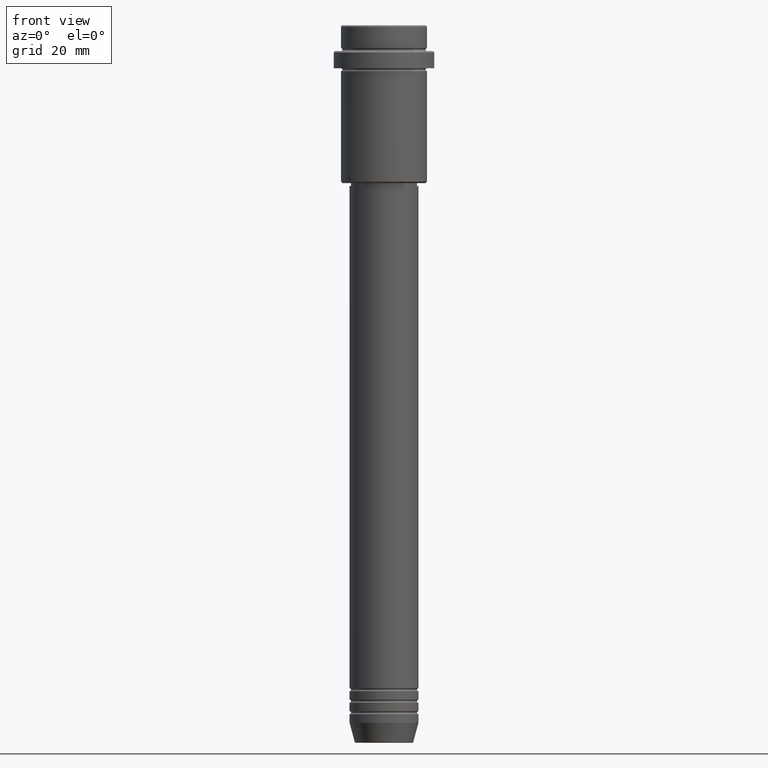
[diagram: clean part render]
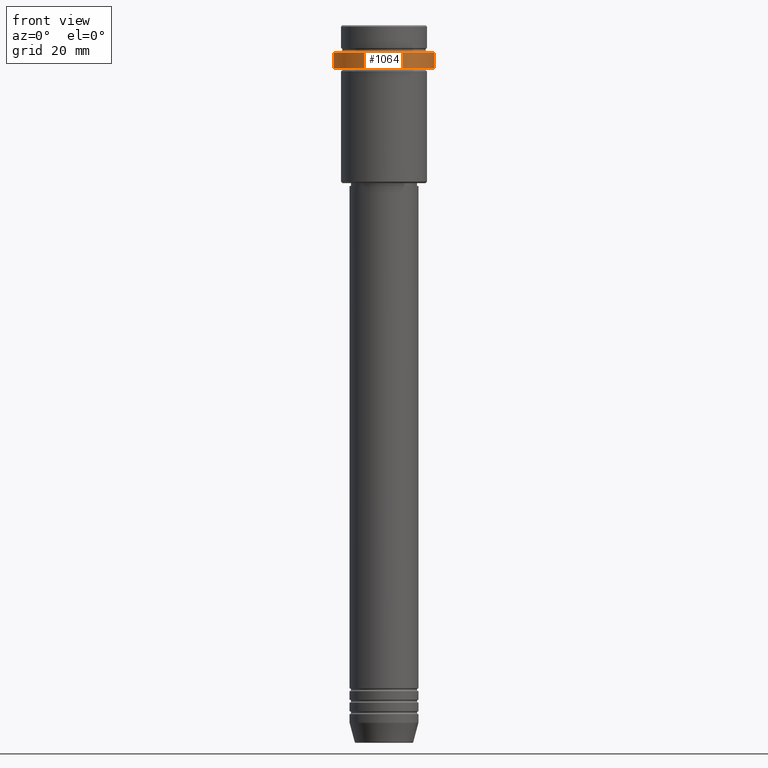
[diagram: same view with one face highlighted and labeled with its STEP entity id]
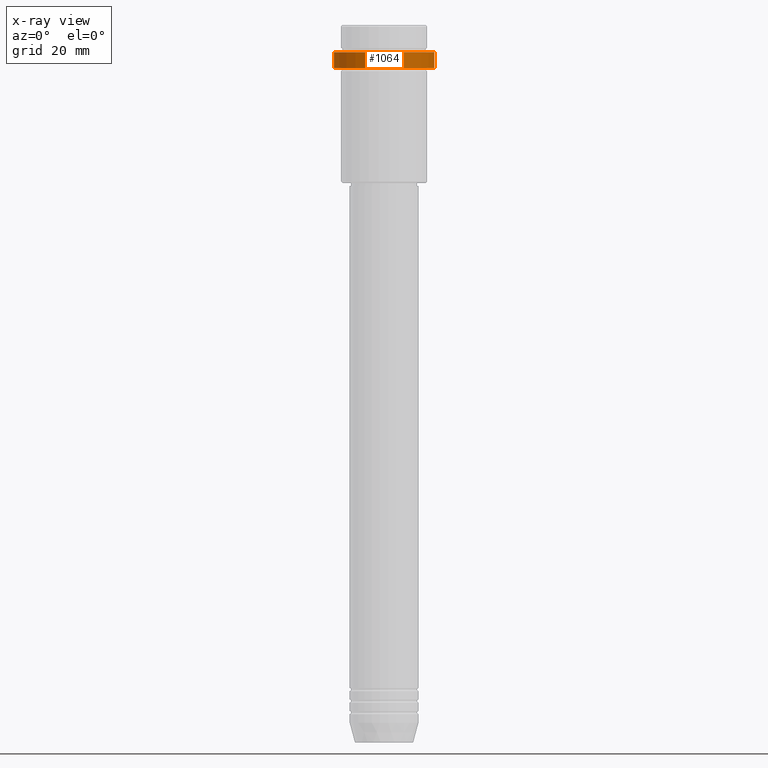
[diagram: x-ray of the same camera — body ghosted, the highlighted face saturated]
A machine part, front view. The second image highlights one B-rep face of the part: STEP entity #1064.
The next image is the same camera in x-ray: the body ghosted, the highlighted face saturated — about 0% of this face is hidden behind the body in this view.
In plain terms, the highlighted cylindrical surface (partial cylindrical patch) has radius 17.5 mm, axis along (-0, -0, 1).
Its self-contained STEP definition (entity closure, byte-faithful):
#18 = CIRCLE ( 'NONE', #400, 17.50000000000000000 ) ;
#65 = VECTOR ( 'NONE', #1227, 1000.000000000000000 ) ;
#74 = CARTESIAN_POINT ( 'NONE',  ( 0.000000000000000000, 0.000000000000000000, -9.499999999999973355 ) ) ;
#80 = DIRECTION ( 'NONE',  ( -0.000000000000000000, -0.000000000000000000, 1.000000000000000000 ) ) ;
#165 = DIRECTION ( 'NONE',  ( 1.000000000000000000, 0.000000000000000000, 0.000000000000000000 ) ) ;
#179 = ORIENTED_EDGE ( 'NONE', *, *, #1400, .F. ) ;
#184 = FACE_OUTER_BOUND ( 'NONE', #388, .T. ) ;
#244 = VECTOR ( 'NONE', #1109, 1000.000000000000000 ) ;
#296 = CARTESIAN_POINT ( 'NONE',  ( -17.50000000000000000, 2.143131898507868248E-15, -15.00000000000000178 ) ) ;
#302 = ORIENTED_EDGE ( 'NONE', *, *, #1111, .T. ) ;
#303 = EDGE_CURVE ( 'NONE', #636, #521, #799, .T. ) ;
#316 = AXIS2_PLACEMENT_3D ( 'NONE', #821, #80, #165 ) ;
#388 = EDGE_LOOP ( 'NONE', ( #179, #982, #1199, #302 ) ) ;
#400 = AXIS2_PLACEMENT_3D ( 'NONE', #427, #751, #1055 ) ;
#427 = CARTESIAN_POINT ( 'NONE',  ( 0.000000000000000000, 0.000000000000000000, -15.00000000000000178 ) ) ;
#498 = DIRECTION ( 'NONE',  ( 0.000000000000000000, 0.000000000000000000, -1.000000000000000000 ) ) ;
#521 = VERTEX_POINT ( 'NONE', #911 ) ;
#587 = DIRECTION ( 'NONE',  ( 1.000000000000000000, 0.000000000000000000, 0.000000000000000000 ) ) ;
#636 = VERTEX_POINT ( 'NONE', #1010 ) ;
#673 = AXIS2_PLACEMENT_3D ( 'NONE', #74, #498, #587 ) ;
#695 = CARTESIAN_POINT ( 'NONE',  ( -17.50000000000000000, 2.143131898507868248E-15, -9.499999999999973355 ) ) ;
#701 = CYLINDRICAL_SURFACE ( 'NONE', #316, 17.50000000000000000 ) ;
#751 = DIRECTION ( 'NONE',  ( -0.000000000000000000, -0.000000000000000000, 1.000000000000000000 ) ) ;
#775 = VERTEX_POINT ( 'NONE', #296 ) ;
#799 = LINE ( 'NONE', #1340, #65 ) ;
#821 = CARTESIAN_POINT ( 'NONE',  ( 0.000000000000000000, 0.000000000000000000, 0.000000000000000000 ) ) ;
#911 = CARTESIAN_POINT ( 'NONE',  ( 17.50000000000000000, 0.000000000000000000, -9.499999999999973355 ) ) ;
#982 = ORIENTED_EDGE ( 'NONE', *, *, #1265, .T. ) ;
#1002 = LINE ( 'NONE', #1120, #244 ) ;
#1010 = CARTESIAN_POINT ( 'NONE',  ( 17.50000000000000000, 0.000000000000000000, -15.00000000000000178 ) ) ;
#1055 = DIRECTION ( 'NONE',  ( 1.000000000000000000, 0.000000000000000000, 0.000000000000000000 ) ) ;
#1061 = VERTEX_POINT ( 'NONE', #695 ) ;
#1064 = ADVANCED_FACE ( 'NONE', ( #184 ), #701, .T. ) ;
#1109 = DIRECTION ( 'NONE',  ( -0.000000000000000000, -0.000000000000000000, 1.000000000000000000 ) ) ;
#1111 = EDGE_CURVE ( 'NONE', #521, #1061, #1293, .T. ) ;
#1120 = CARTESIAN_POINT ( 'NONE',  ( -17.50000000000000000, 2.143131898507868248E-15, 0.000000000000000000 ) ) ;
#1199 = ORIENTED_EDGE ( 'NONE', *, *, #303, .T. ) ;
#1227 = DIRECTION ( 'NONE',  ( -0.000000000000000000, -0.000000000000000000, 1.000000000000000000 ) ) ;
#1265 = EDGE_CURVE ( 'NONE', #775, #636, #18, .T. ) ;
#1293 = CIRCLE ( 'NONE', #673, 17.50000000000000000 ) ;
#1340 = CARTESIAN_POINT ( 'NONE',  ( 17.50000000000000000, 0.000000000000000000, 0.000000000000000000 ) ) ;
#1400 = EDGE_CURVE ( 'NONE', #775, #1061, #1002, .T. ) ;